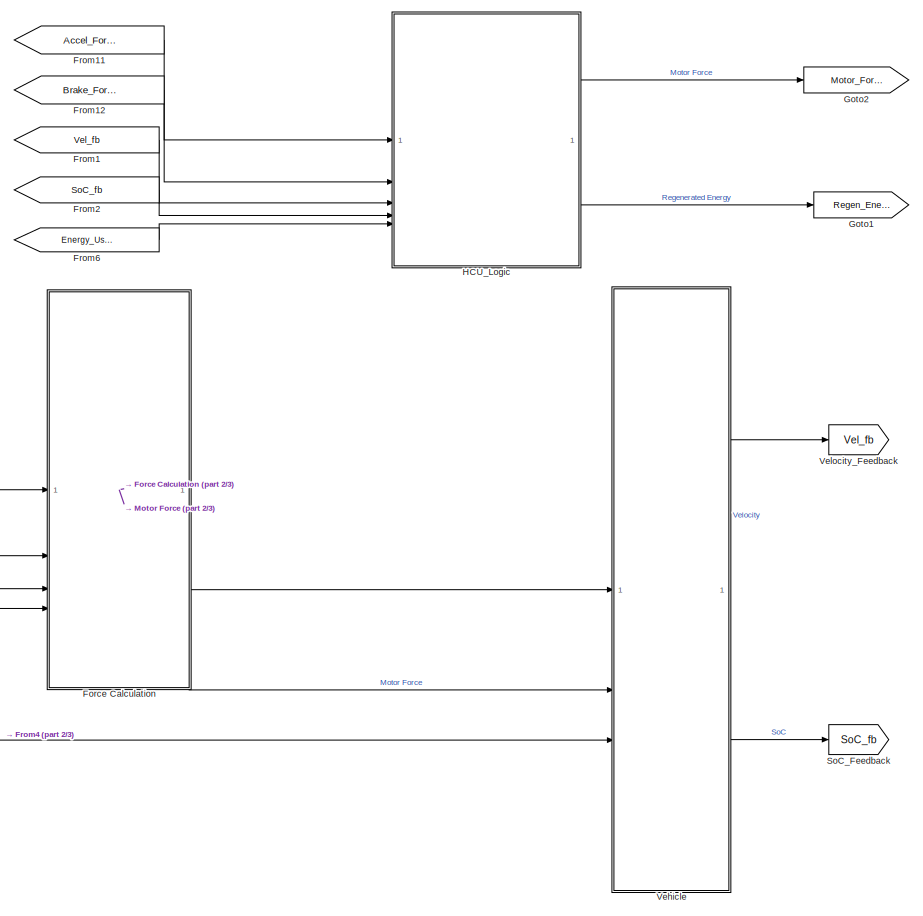
[diagram: root canvas - part 1/3, center side, full height]
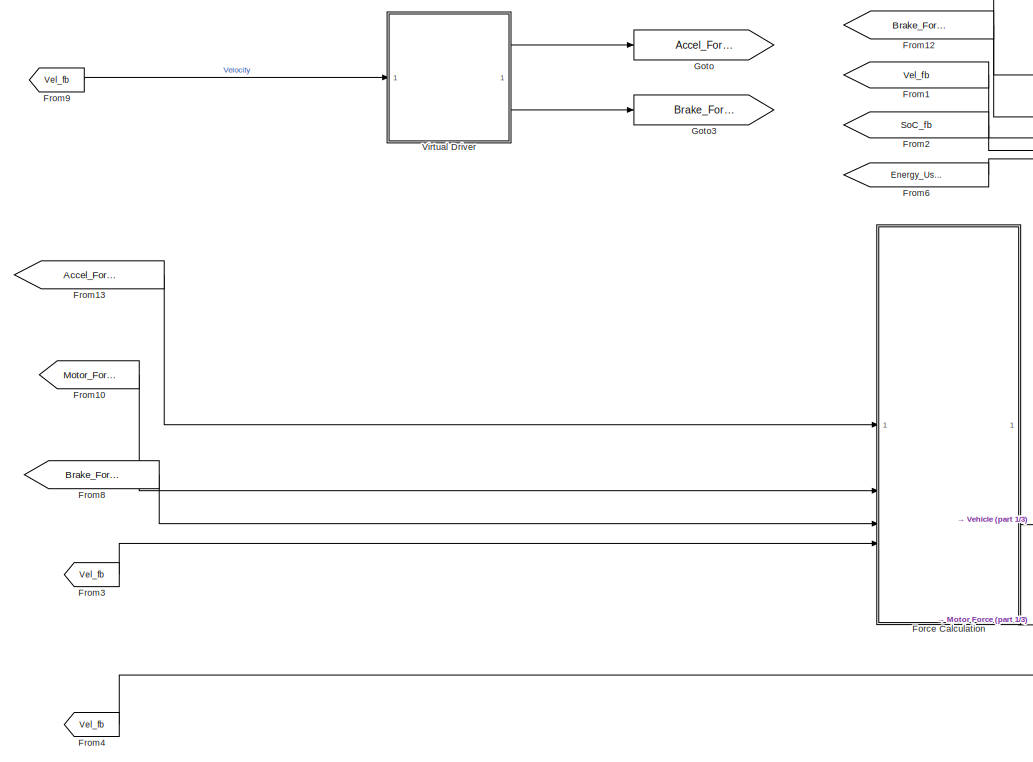
[diagram: root canvas - part 2/3, left side, full height]
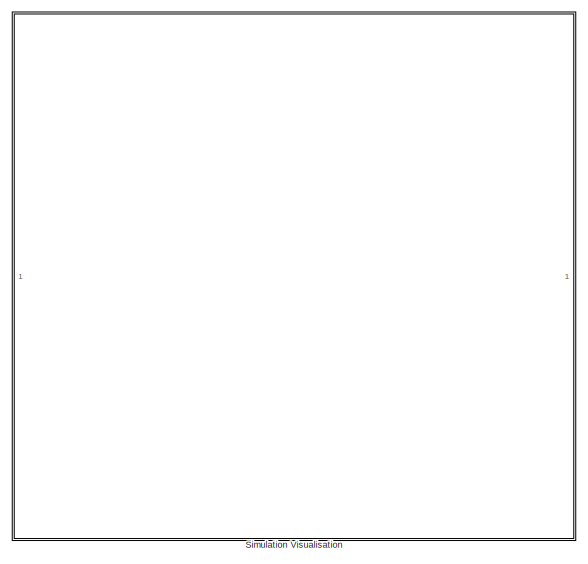
[diagram: root canvas - part 3/3, middle right region]
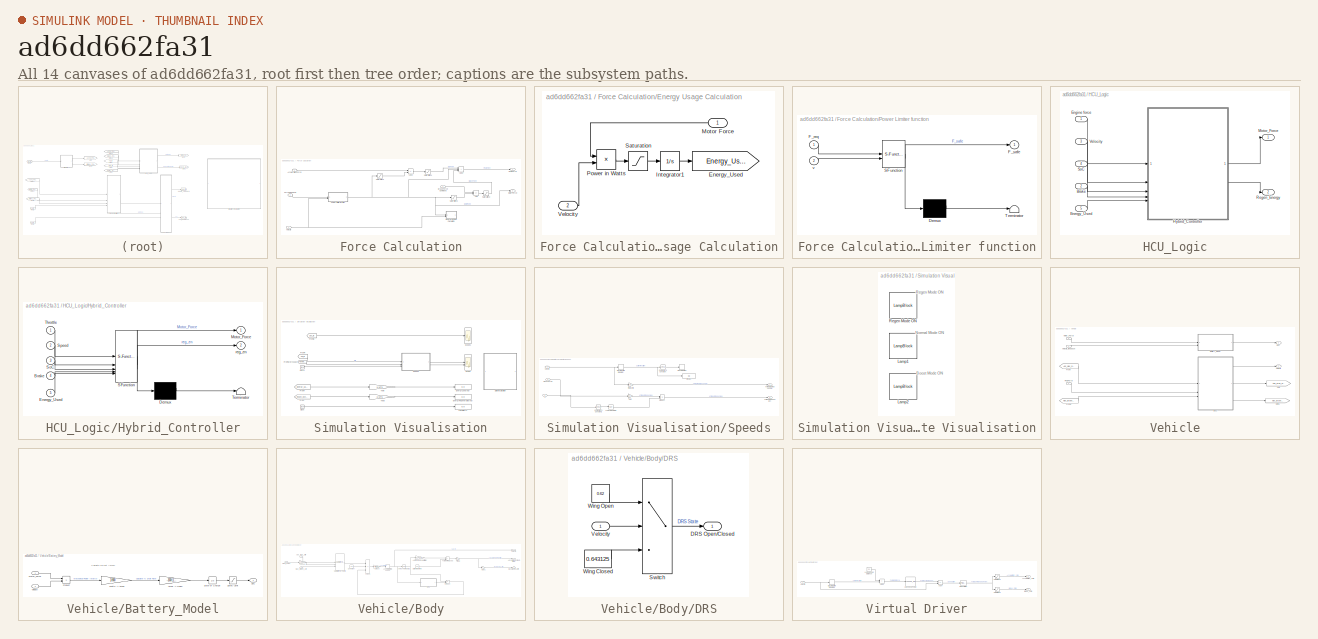
[diagram: thumbnail index - all 14 canvases of the model, root first then tree order]
MODEL slx_ad6dd662fa31
KIND model
CONFIG AbsTol = auto
CONFIG EnableMultiTasking = off
CONFIG FixedStep = 0.001
CONFIG MaxStep = auto
CONFIG MinStep = auto
CONFIG RelTol = 1e-3
CONFIG SampleTimeConstraint = Unconstrained
CONFIG SolverName = FixedStepAuto
CONFIG StartTime = 0
CONFIG StopTime = 90
BLOCK [SubSystem] Force Calculation
BLOCK [Inport] Force Calculation/Acceleration Force
BLOCK [Sum] Force Calculation/Add
  IconShape = rectangular
  Inputs = +-
BLOCK [Sum] Force Calculation/Add1
  IconShape = rectangular
  Inputs = +-
BLOCK [Sum] Force Calculation/Add2
  IconShape = rectangular
  Inputs = +++
BLOCK [Inport] Force Calculation/Brake Force Command
  Port = 3
BLOCK [SubSystem] Force Calculation/Energy Usage Calculation
BLOCK [Goto] Force Calculation/Energy Usage Calculation/Energy_Used
  GotoTag = Energy_Used
  TagVisibility = global
BLOCK [Integrator] Force Calculation/Energy Usage Calculation/Integrator1
BLOCK [Inport] Force Calculation/Energy Usage Calculation/Motor Force
BLOCK [Product] Force Calculation/Energy Usage Calculation/Power in Watts
BLOCK [Saturate] Force Calculation/Energy Usage Calculation/Saturation
  LowerLimit = 0
  UpperLimit = inf
BLOCK [Inport] Force Calculation/Energy Usage Calculation/Velocity
  Port = 2
BLOCK [Outport] Force Calculation/Final Force
BLOCK [Inport] Force Calculation/Force Required
  Port = 2
BLOCK [Outport] Force Calculation/Motor Force
  Port = 2
BLOCK [SubSystem] Force Calculation/Power Limiter function
  ErrorFcn = Stateflow.Translate.translate
  PermitHierarchicalResolution = ExplicitOnly
  SFBlockType = MATLAB Function
  TreatAsAtomicUnit = on
BLOCK [Demux] Force Calculation/Power Limiter function/ Demux 
  Outputs = 1
BLOCK [S-Function] Force Calculation/Power Limiter function/ SFunction 
  EnableBusSupport = on
  FunctionName = sf_sfun
  PortCounts = [2 2]
  SFcnIsStateOwnerBlock = off
  SFunctionDeploymentMode = off
  Tag = Stateflow S-Function 2
BLOCK [Terminator] Force Calculation/Power Limiter function/ Terminator 
BLOCK [Inport] Force Calculation/Power Limiter function/F_req
BLOCK [Outport] Force Calculation/Power Limiter function/F_safe
BLOCK [Inport] Force Calculation/Power Limiter function/v
  Port = 2
BLOCK [Saturate] Force Calculation/Saturation1
  LowerLimit = 0
  UpperLimit = inf
BLOCK [Saturate] Force Calculation/Saturation2
  LowerLimit = -inf
  UpperLimit = 0
BLOCK [Saturate] Force Calculation/Saturation3
  LowerLimit = -inf
  UpperLimit = 0
BLOCK [Saturate] Force Calculation/Saturation4
  LowerLimit = 0
  UpperLimit = inf
BLOCK [Inport] Force Calculation/Velocity
  Port = 4
BLOCK [From] From1
  GotoTag = Vel_fb
  TagVisibility = global
BLOCK [From] From10
  GotoTag = Motor_Force
  TagVisibility = global
BLOCK [From] From11
  GotoTag = Accel_Force_Cmd
  TagVisibility = global
BLOCK [From] From12
  GotoTag = Brake_Force_Cmd
  TagVisibility = global
BLOCK [From] From13
  GotoTag = Accel_Force_Cmd
  TagVisibility = global
BLOCK [From] From2
  GotoTag = SoC_fb
  TagVisibility = global
BLOCK [From] From3
  GotoTag = Vel_fb
  TagVisibility = global
BLOCK [From] From4
  GotoTag = Vel_fb
  TagVisibility = global
BLOCK [From] From6
  GotoTag = Energy_Used
  TagVisibility = global
BLOCK [From] From8
  GotoTag = Brake_Force_Cmd
  TagVisibility = global
BLOCK [From] From9
  GotoTag = Vel_fb
  TagVisibility = global
BLOCK [Goto] Goto
  GotoTag = Accel_Force_Cmd
  TagVisibility = global
BLOCK [Goto] Goto1
  GotoTag = Regen_Energy
  TagVisibility = global
BLOCK [Goto] Goto2
  GotoTag = Motor_Force
  TagVisibility = global
BLOCK [Goto] Goto3
  GotoTag = Brake_Force_Cmd
  TagVisibility = global
BLOCK [SubSystem] HCU_Logic
  RTWSystemCode = Reusable function
  TreatAsAtomicUnit = on
BLOCK [Inport] HCU_Logic/Brake
  Port = 2
BLOCK [Inport] HCU_Logic/Energy_Used
  Port = 5
BLOCK [Inport] HCU_Logic/Engine force
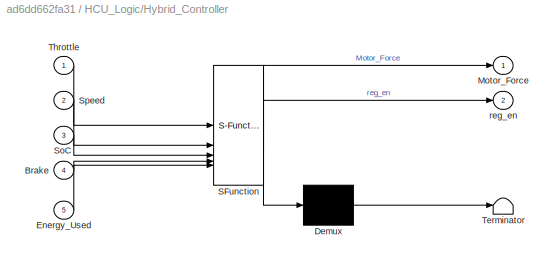
BLOCK [SubSystem] HCU_Logic/Hybrid_Controller
  ErrorFcn = Stateflow.Translate.translate
  PermitHierarchicalResolution = ExplicitOnly
  SFBlockType = Chart
  TreatAsAtomicUnit = on
BLOCK [Demux] HCU_Logic/Hybrid_Controller/ Demux 
  Outputs = 1
BLOCK [S-Function] HCU_Logic/Hybrid_Controller/ SFunction 
  EnableBusSupport = on
  FunctionName = sf_sfun
  PortCounts = [5 3]
  SFcnIsStateOwnerBlock = off
  SFunctionDeploymentMode = off
  Tag = Stateflow S-Function 3
BLOCK [Terminator] HCU_Logic/Hybrid_Controller/ Terminator 
BLOCK [Inport] HCU_Logic/Hybrid_Controller/Brake
  Port = 4
BLOCK [Inport] HCU_Logic/Hybrid_Controller/Energy_Used
  Port = 5
BLOCK [Outport] HCU_Logic/Hybrid_Controller/Motor_Force
BLOCK [Inport] HCU_Logic/Hybrid_Controller/SoC
  Port = 3
BLOCK [Inport] HCU_Logic/Hybrid_Controller/Speed
  Port = 2
BLOCK [Inport] HCU_Logic/Hybrid_Controller/Throttle
BLOCK [Outport] HCU_Logic/Hybrid_Controller/reg_en
  Port = 2
BLOCK [Outport] HCU_Logic/Motor_Force
BLOCK [Outport] HCU_Logic/Regen_Energy
  Port = 2
BLOCK [Inport] HCU_Logic/SoC
  Port = 4
BLOCK [Inport] HCU_Logic/Velocity
  Port = 3
BLOCK [SubSystem] Simulation Visualisation
BLOCK [Clock] Simulation Visualisation/Clock
BLOCK [Clock] Simulation Visualisation/Clock1
BLOCK [Display] Simulation Visualisation/Energy Regenerated (MJ)
  Decimation = 1
  Format = bank
BLOCK [Display] Simulation Visualisation/Energy Used (MJ)
  Decimation = 1
  Format = bank
BLOCK [From] Simulation Visualisation/From
  GotoTag = Regen_Energy
  TagVisibility = global
BLOCK [FromWorkspace] Simulation Visualisation/From Workspace
  VariableName = Monza_Cycle
BLOCK [From] Simulation Visualisation/From4
  GotoTag = Vel_fb
  TagVisibility = global
BLOCK [From] Simulation Visualisation/From5
  GotoTag = SoC_fb
  TagVisibility = global
BLOCK [From] Simulation Visualisation/From7
  GotoTag = Energy_Used
  TagVisibility = global
BLOCK [Display] Simulation Visualisation/Lap Time (s)
  Decimation = 1
  Format = decimal (Stored Integer)
BLOCK [Scope] Simulation Visualisation/Scope
  Floating = off
  NumInputPorts = 2
  ScopeSpecificationString = Simulink.scopes.TimeScopeBlockCfg('CurrentConfiguration', extmgr.ConfigurationSet(extmgr.Configuration('Core','General UI',true),extmgr.Configuration('Core','Source UI',true),extmgr.Configuration('Sources','WiredSimulink',true),extmgr.Configuration('Visuals','Time Domain',true,'SerializedDisplays',{struct('MinYLimReal','-43.5','MaxYLimReal','391.5','YLabelReal','','MinYLimMag','0.00000','MaxYLimMa...<+1511ch>
BLOCK [Scope] Simulation Visualisation/Scope1
  Floating = off
  NumInputPorts = 1
  ScopeSpecificationString = Simulink.scopes.TimeScopeBlockCfg('CurrentConfiguration', extmgr.ConfigurationSet(extmgr.Configuration('Core','General UI',true),extmgr.Configuration('Core','Source UI',true),extmgr.Configuration('Sources','WiredSimulink',true,'DataLoggingVariableName','ScopeData1'),extmgr.Configuration('Visuals','Time Domain',true,'SerializedDisplays',{struct('MinYLimReal','50.97392','MaxYLimReal','101.91828','YL...<+1565ch>
BLOCK [SubSystem] Simulation Visualisation/Speeds
BLOCK [Reference] Simulation Visualisation/Speeds/Compare To Constant  REF=simulink/Logic and Bit
Operations/Compare
To Constant
  SourceBlock = simulink/Logic and Bit\nOperations/Compare\nTo Constant
  SourceType = Compare To Constant
BLOCK [Reference] Simulation Visualisation/Speeds/Compare To Constant1  REF=simulink/Logic and Bit
Operations/Compare
To Constant
  SourceBlock = simulink/Logic and Bit\nOperations/Compare\nTo Constant
  SourceType = Compare To Constant
BLOCK [DiscreteIntegrator] Simulation Visualisation/Speeds/Discrete-Time Integrator
  ICPrevOutput = DiscIntNeverNeededParam
  ICPrevScaledInput = DiscIntNeverNeededParam
  InitialConditionSetting = Auto
  SampleTime = -1
BLOCK [Display] Simulation Visualisation/Speeds/Display
  Decimation = 1
BLOCK [Gain] Simulation Visualisation/Speeds/Gain
  Gain = 3.6
BLOCK [Logic] Simulation Visualisation/Speeds/Logical Operator1
  AllPortsSameDT = off
  Operator = NOT
  OutDataTypeStr = boolean
BLOCK [Inport] Simulation Visualisation/Speeds/Monza Cycle
  Port = 2
BLOCK [Product] Simulation Visualisation/Speeds/Product
BLOCK [Stop] Simulation Visualisation/Speeds/Stop Simulation
BLOCK [Inport] Simulation Visualisation/Speeds/Velocity
BLOCK [Outport] Simulation Visualisation/Speeds/km//h (Verstappen lap)
  Port = 2
BLOCK [Outport] Simulation Visualisation/Speeds/km//h (simulated vehicle)
BLOCK [Gain] Simulation Visualisation/Speeds/m//s to km//h
  Gain = 3.6
BLOCK [Inport] Simulation Visualisation/Speeds/u
  Port = 3
BLOCK [SubSystem] Simulation Visualisation/State Visualisation
BLOCK [LampBlock] Simulation Visualisation/State Visualisation/Lamp1
  LabelPosition = Hide
BLOCK [LampBlock] Simulation Visualisation/State Visualisation/Lamp2
  LabelPosition = Hide
BLOCK [LampBlock] Simulation Visualisation/State Visualisation/Regen Mode ON
  LabelPosition = Hide
BLOCK [Gain] Simulation Visualisation/To MJ
  Gain = 1/10^6
BLOCK [Gain] Simulation Visualisation/To Mj
  Gain = 1/10^6
BLOCK [Goto] SoC_Feedback
  GotoTag = SoC_fb
  TagVisibility = global
BLOCK [SubSystem] Vehicle
BLOCK [SubSystem] Vehicle/Battery_Model
BLOCK [Gain] Vehicle/Battery_Model/Amps -> %SoC
  Gain = -100/(1.75*3600)
BLOCK [Inport] Vehicle/Battery_Model/Motor_Force
BLOCK [Product] Vehicle/Battery_Model/Product
BLOCK [Saturate] Vehicle/Battery_Model/Safety Limit
  LowerLimit = 20
  UpperLimit = 100
BLOCK [Outport] Vehicle/Battery_Model/SoC
BLOCK [Integrator] Vehicle/Battery_Model/State of Charge
  InitialCondition = 90
  LimitOutput = on
  LowerSaturationLimit = 0
  UpperSaturationLimit = 100
BLOCK [Inport] Vehicle/Battery_Model/Velocity
  Port = 2
BLOCK [Gain] Vehicle/Battery_Model/Watts -> Amps
  Gain = 1/800
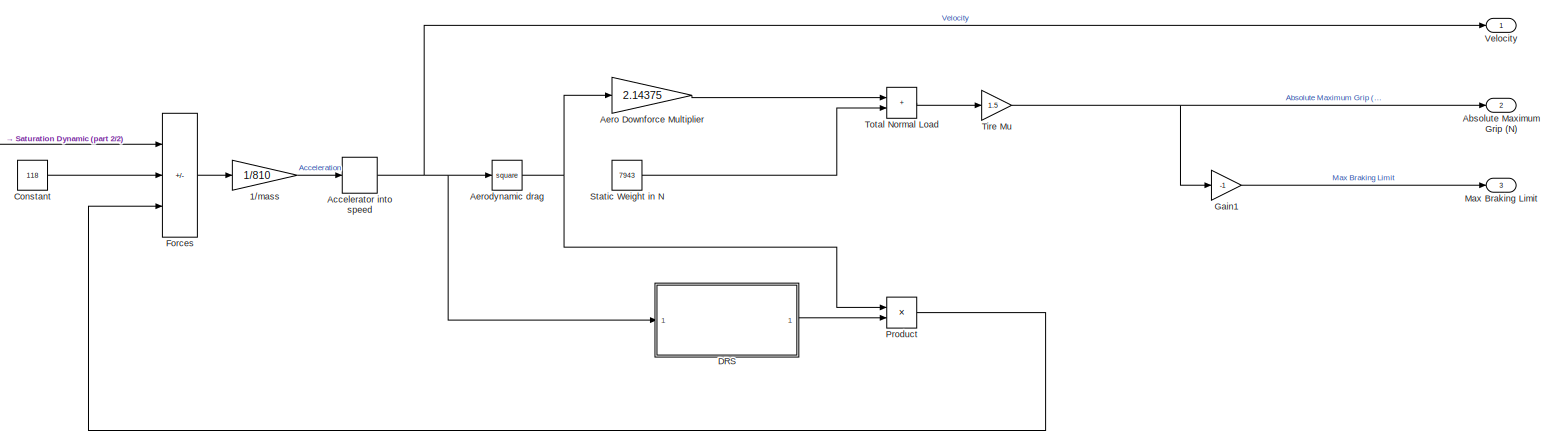
[diagram: Vehicle/Body - part 1/2, center side, full height]
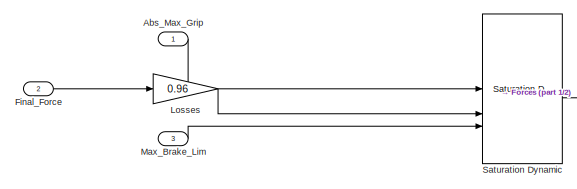
[diagram: Vehicle/Body - part 2/2, middle left region]
BLOCK [SubSystem] Vehicle/Body
BLOCK [Gain] Vehicle/Body/1//mass
  Gain = 1/810
BLOCK [Inport] Vehicle/Body/Abs_Max_Grip
BLOCK [Outport] Vehicle/Body/Absolute Maximum Grip (N)
  Port = 2
BLOCK [DiscreteIntegrator] Vehicle/Body/Accelerator into speed
  ICPrevOutput = DiscIntNeverNeededParam
  ICPrevScaledInput = DiscIntNeverNeededParam
  InitialCondition = 89
  InitialConditionSetting = Auto
  SampleTime = -1
BLOCK [Gain] Vehicle/Body/Aero Downforce Multiplier
  Gain = 2.14375
BLOCK [Math] Vehicle/Body/Aerodynamic drag
  Operator = square
BLOCK [Constant] Vehicle/Body/Constant
  Value = 118
BLOCK [SubSystem] Vehicle/Body/DRS
BLOCK [Outport] Vehicle/Body/DRS/DRS Open//Closed
BLOCK [Switch] Vehicle/Body/DRS/Switch
  Criteria = u2 > Threshold
  InputSameDT = off
  SaturateOnIntegerOverflow = off
  Threshold = 69.4
BLOCK [Inport] Vehicle/Body/DRS/Velocity
BLOCK [Constant] Vehicle/Body/DRS/Wing Closed
  Value = 0.643125
BLOCK [Constant] Vehicle/Body/DRS/Wing Open
  Value = 0.62
BLOCK [Inport] Vehicle/Body/Final_Force
  Port = 2
BLOCK [Sum] Vehicle/Body/Forces
  IconShape = rectangular
  Inputs = +--
BLOCK [Gain] Vehicle/Body/Gain1
  Gain = -1
BLOCK [Gain] Vehicle/Body/Losses
  Gain = 0.96
BLOCK [Outport] Vehicle/Body/Max Braking Limit
  Port = 3
BLOCK [Inport] Vehicle/Body/Max_Brake_Lim
  Port = 3
BLOCK [Product] Vehicle/Body/Product
BLOCK [Reference] Vehicle/Body/Saturation Dynamic  REF=simulink/Discontinuities/Saturation
Dynamic
  SourceBlock = simulink/Discontinuities/Saturation\nDynamic
  SourceType = Saturation Dynamic
BLOCK [Constant] Vehicle/Body/Static Weight in N
  Value = 7943
BLOCK [Gain] Vehicle/Body/Tire Mu
  Gain = 1.5
BLOCK [Sum] Vehicle/Body/Total Normal Load
  IconShape = rectangular
BLOCK [Outport] Vehicle/Body/Velocity
BLOCK [Inport] Vehicle/Final Force
BLOCK [From] Vehicle/From
  GotoTag = Abs_Max_Grip
  TagVisibility = global
BLOCK [From] Vehicle/From1
  GotoTag = Max_Brake_Lim
  TagVisibility = global
BLOCK [Goto] Vehicle/Goto
  GotoTag = Abs_Max_Grip
  TagVisibility = global
BLOCK [Goto] Vehicle/Goto1
  GotoTag = Max_Brake_Lim
  TagVisibility = global
BLOCK [Inport] Vehicle/Motor_Force
  Port = 2
BLOCK [Outport] Vehicle/SoC
  Port = 2
BLOCK [Outport] Vehicle/Velocity
BLOCK [Inport] Vehicle/Velocity_feedback
  Port = 3
BLOCK [Goto] Velocity_Feedback
  GotoTag = Vel_fb
  TagVisibility = global
BLOCK [SubSystem] Virtual Driver
BLOCK [Lookup_n-D] Virtual Driver/1-D Lookup Table
  BreakpointsForDimension1 = monza_dist_axis
  ExtrapMethod = Clip
  InputPortMap = u0
  InternalRulePriority = Speed
  NumberOfTableDimensions = 1
  RndMeth = Simplest
  Table = monza_speed_target
BLOCK [Outport] Virtual Driver/Acceleration_cmd
BLOCK [Sum] Virtual Driver/Add3
  IconShape = rectangular
BLOCK [Sum] Virtual Driver/Add4
  IconShape = rectangular
  Inputs = +-
BLOCK [Outport] Virtual Driver/Brake_Cmd
  Port = 2
BLOCK [DiscreteIntegrator] Virtual Driver/Discrete-Time Integrator1
  ICPrevOutput = DiscIntNeverNeededParam
  ICPrevScaledInput = DiscIntNeverNeededParam
  InitialConditionSetting = Auto
  SampleTime = -1
BLOCK [Constant] Virtual Driver/Lookahead distance
  Value = 50
BLOCK [Reference] Virtual Driver/PID Controller  REF=slpidlib/PID Controller
  LibrarySourceBlock = simulink/Continuous/PID Controller
  SourceBlock = slpidlib/PID Controller
  SourceType = PID 1dof
BLOCK [Saturate] Virtual Driver/Saturation5
  LowerLimit = 0
  UpperLimit = inf
BLOCK [Saturate] Virtual Driver/Saturation6
  LowerLimit = -inf
  UpperLimit = 0
BLOCK [Inport] Virtual Driver/Velocity
ANNOTATION Simulation Visualisation/State Visualisation: Boost Mode ON
ANNOTATION Simulation Visualisation/State Visualisation: Normal Mode ON
ANNOTATION Simulation Visualisation/State Visualisation: Regen Mode ON
ANNOTATION Vehicle/Battery_Model: Calculate current (Amps)
LINE Force Calculation/Acceleration Force:1 -> Force Calculation/Add1:1
LINE Force Calculation/Add1:1 -> Force Calculation/Saturation1:1
LINE Force Calculation/Add2:1 -> Force Calculation/Final Force:1
LINE Force Calculation/Add:1 -> Force Calculation/Saturation2:1
LINE Force Calculation/Brake Force Command:1 -> Force Calculation/Add:1
LINE Force Calculation/Energy Usage Calculation/Integrator1:1 -> Force Calculation/Energy Usage Calculation/Energy_Used:1
LINE Force Calculation/Energy Usage Calculation/Motor Force:1 -> Force Calculation/Energy Usage Calculation/Power in Watts:1
LINE Force Calculation/Energy Usage Calculation/Power in Watts:1 -> Force Calculation/Energy Usage Calculation/Saturation:1
LINE Force Calculation/Energy Usage Calculation/Saturation:1 -> Force Calculation/Energy Usage Calculation/Integrator1:1
LINE Force Calculation/Energy Usage Calculation/Velocity:1 -> Force Calculation/Energy Usage Calculation/Power in Watts:2
LINE Force Calculation/Force Required:1 -> Force Calculation/Power Limiter function:1
NET Force Calculation/Power Limiter function:1 -> Force Calculation/Add2:2, Force Calculation/Energy Usage Calculation:1, Force Calculation/Motor Force:1, Force Calculation/Saturation3:1, Force Calculation/Saturation4:1
LINE Force Calculation/Saturation1:1 -> Force Calculation/Add2:1
LINE Force Calculation/Saturation2:1 -> Force Calculation/Add2:3
LINE Force Calculation/Saturation3:1 -> Force Calculation/Add:2
LINE Force Calculation/Saturation4:1 -> Force Calculation/Add1:2
NET Force Calculation/Velocity:1 -> Force Calculation/Energy Usage Calculation:2, Force Calculation/Power Limiter function:2
LINE Force Calculation:1 -> Vehicle:1
LINE Force Calculation:2 -> Vehicle:2
LINE From10:1 -> Force Calculation:2
LINE From11:1 -> HCU_Logic:1
LINE From12:1 -> HCU_Logic:2
LINE From13:1 -> Force Calculation:1
LINE From1:1 -> HCU_Logic:3
LINE From2:1 -> HCU_Logic:4
LINE From3:1 -> Force Calculation:4
LINE From4:1 -> Vehicle:3
LINE From6:1 -> HCU_Logic:5
LINE From8:1 -> Force Calculation:3
LINE From9:1 -> Virtual Driver:1
LINE HCU_Logic/Brake:1 -> HCU_Logic/Hybrid_Controller:4
LINE HCU_Logic/Energy_Used:1 -> HCU_Logic/Hybrid_Controller:5
LINE HCU_Logic/Engine force:1 -> HCU_Logic/Hybrid_Controller:1
LINE HCU_Logic/Hybrid_Controller:1 -> HCU_Logic/Motor_Force:1
LINE HCU_Logic/Hybrid_Controller:2 -> HCU_Logic/Regen_Energy:1
LINE HCU_Logic/SoC:1 -> HCU_Logic/Hybrid_Controller:3
LINE HCU_Logic/Velocity:1 -> HCU_Logic/Hybrid_Controller:2
LINE HCU_Logic:1 -> Goto2:1
LINE HCU_Logic:2 -> Goto1:1
LINE Simulation Visualisation/Clock1:1 -> Simulation Visualisation/Speeds:3
LINE Simulation Visualisation/Clock:1 -> Simulation Visualisation/Lap Time (s):1
LINE Simulation Visualisation/From Workspace:1 -> Simulation Visualisation/Speeds:2
LINE Simulation Visualisation/From4:1 -> Simulation Visualisation/Speeds:1
LINE Simulation Visualisation/From5:1 -> Simulation Visualisation/Scope1:1
LINE Simulation Visualisation/From7:1 -> Simulation Visualisation/To Mj:1
LINE Simulation Visualisation/From:1 -> Simulation Visualisation/To MJ:1
LINE Simulation Visualisation/Speeds/Compare To Constant1:1 -> Simulation Visualisation/Speeds/Logical Operator1:1
LINE Simulation Visualisation/Speeds/Compare To Constant:1 -> Simulation Visualisation/Speeds/Stop Simulation:1
NET Simulation Visualisation/Speeds/Discrete-Time Integrator:1 -> Simulation Visualisation/Speeds/Compare To Constant:1, Simulation Visualisation/Speeds/Display:1
LINE Simulation Visualisation/Speeds/Gain:1 -> Simulation Visualisation/Speeds/Product:1
LINE Simulation Visualisation/Speeds/Logical Operator1:1 -> Simulation Visualisation/Speeds/Product:2
LINE Simulation Visualisation/Speeds/Monza Cycle:1 -> Simulation Visualisation/Speeds/Gain:1
LINE Simulation Visualisation/Speeds/Product:1 -> Simulation Visualisation/Speeds/km//h (Verstappen lap):1
NET Simulation Visualisation/Speeds/Velocity:1 -> Simulation Visualisation/Speeds/Discrete-Time Integrator:1, Simulation Visualisation/Speeds/m//s to km//h:1
LINE Simulation Visualisation/Speeds/m//s to km//h:1 -> Simulation Visualisation/Speeds/km//h (simulated vehicle):1
LINE Simulation Visualisation/Speeds/u:1 -> Simulation Visualisation/Speeds/Compare To Constant1:1
LINE Simulation Visualisation/Speeds:1 -> Simulation Visualisation/Scope:1
LINE Simulation Visualisation/Speeds:2 -> Simulation Visualisation/Scope:2
LINE Simulation Visualisation/To MJ:1 -> Simulation Visualisation/Energy Regenerated (MJ):1
LINE Simulation Visualisation/To Mj:1 -> Simulation Visualisation/Energy Used (MJ):1
LINE Vehicle/Battery_Model/Amps -> %SoC:1 -> Vehicle/Battery_Model/State of Charge:1
LINE Vehicle/Battery_Model/Motor_Force:1 -> Vehicle/Battery_Model/Product:1
LINE Vehicle/Battery_Model/Product:1 -> Vehicle/Battery_Model/Watts -> Amps:1
LINE Vehicle/Battery_Model/Safety Limit:1 -> Vehicle/Battery_Model/SoC:1
LINE Vehicle/Battery_Model/State of Charge:1 -> Vehicle/Battery_Model/Safety Limit:1
LINE Vehicle/Battery_Model/Velocity:1 -> Vehicle/Battery_Model/Product:2
LINE Vehicle/Battery_Model/Watts -> Amps:1 -> Vehicle/Battery_Model/Amps -> %SoC:1
LINE Vehicle/Battery_Model:1 -> Vehicle/SoC:1
LINE Vehicle/Body/1//mass:1 -> Vehicle/Body/Accelerator into speed:1
LINE Vehicle/Body/Abs_Max_Grip:1 -> Vehicle/Body/Saturation Dynamic:1
NET Vehicle/Body/Accelerator into speed:1 -> Vehicle/Body/Aerodynamic drag:1, Vehicle/Body/DRS:1, Vehicle/Body/Velocity:1
LINE Vehicle/Body/Aero Downforce Multiplier:1 -> Vehicle/Body/Total Normal Load:1
NET Vehicle/Body/Aerodynamic drag:1 -> Vehicle/Body/Aero Downforce Multiplier:1, Vehicle/Body/Product:1
LINE Vehicle/Body/Constant:1 -> Vehicle/Body/Forces:2
LINE Vehicle/Body/DRS/Switch:1 -> Vehicle/Body/DRS/DRS Open//Closed:1
LINE Vehicle/Body/DRS/Velocity:1 -> Vehicle/Body/DRS/Switch:2
LINE Vehicle/Body/DRS/Wing Closed:1 -> Vehicle/Body/DRS/Switch:3
LINE Vehicle/Body/DRS/Wing Open:1 -> Vehicle/Body/DRS/Switch:1
LINE Vehicle/Body/DRS:1 -> Vehicle/Body/Product:2
LINE Vehicle/Body/Final_Force:1 -> Vehicle/Body/Losses:1
LINE Vehicle/Body/Forces:1 -> Vehicle/Body/1//mass:1
LINE Vehicle/Body/Gain1:1 -> Vehicle/Body/Max Braking Limit:1
LINE Vehicle/Body/Losses:1 -> Vehicle/Body/Saturation Dynamic:2
LINE Vehicle/Body/Max_Brake_Lim:1 -> Vehicle/Body/Saturation Dynamic:3
LINE Vehicle/Body/Product:1 -> Vehicle/Body/Forces:3
LINE Vehicle/Body/Saturation Dynamic:1 -> Vehicle/Body/Forces:1
LINE Vehicle/Body/Static Weight in N:1 -> Vehicle/Body/Total Normal Load:2
NET Vehicle/Body/Tire Mu:1 -> Vehicle/Body/Absolute Maximum Grip (N):1, Vehicle/Body/Gain1:1
LINE Vehicle/Body/Total Normal Load:1 -> Vehicle/Body/Tire Mu:1
LINE Vehicle/Body:1 -> Vehicle/Velocity:1
LINE Vehicle/Body:2 -> Vehicle/Goto:1
LINE Vehicle/Body:3 -> Vehicle/Goto1:1
LINE Vehicle/Final Force:1 -> Vehicle/Body:2
LINE Vehicle/From1:1 -> Vehicle/Body:3
LINE Vehicle/From:1 -> Vehicle/Body:1
LINE Vehicle/Motor_Force:1 -> Vehicle/Battery_Model:1
LINE Vehicle/Velocity_feedback:1 -> Vehicle/Battery_Model:2
LINE Vehicle:1 -> Velocity_Feedback:1
LINE Vehicle:2 -> SoC_Feedback:1
LINE Virtual Driver/1-D Lookup Table:1 -> Virtual Driver/Add4:1
LINE Virtual Driver/Add3:1 -> Virtual Driver/1-D Lookup Table:1
LINE Virtual Driver/Add4:1 -> Virtual Driver/PID Controller:1
LINE Virtual Driver/Discrete-Time Integrator1:1 -> Virtual Driver/Add3:2
LINE Virtual Driver/Lookahead distance:1 -> Virtual Driver/Add3:1
NET Virtual Driver/PID Controller:1 -> Virtual Driver/Saturation5:1, Virtual Driver/Saturation6:1
LINE Virtual Driver/Saturation5:1 -> Virtual Driver/Acceleration_cmd:1
LINE Virtual Driver/Saturation6:1 -> Virtual Driver/Brake_Cmd:1
NET Virtual Driver/Velocity:1 -> Virtual Driver/Add4:2, Virtual Driver/Discrete-Time Integrator1:1
LINE Virtual Driver:1 -> Goto:1
LINE Virtual Driver:2 -> Goto3:1
note: NET lines group one-source signal fan-out (src -> all destinations, sorted); 1:1 wires keep LINE
CHART Force Calculation/Power Limiter function states=1 transitions=1
  STATE_LABEL 'eML_blk_kernel()'
  STATE_LABEL 'SCRIPT:\nfunction F_safe = PowerLimiter(F_req, v)\n    % regulations: 120 kw limit (120,000 wats)\n    P_max = 120000;\n    % prevent divide by zero\n    % if speed is less than 1 m/s we pretend its 1 m/s to avoid infinity\n    % at low speeds we are limited by torque, not power\n    v_safe = max(abs(v), 1.0);\n\n    % calculate the force limit at this speed\n    % power = force * velocity -> force = power ...<+379ch>'
CHART HCU_Logic/Hybrid_Controller states=6 transitions=6
  STATE_LABEL 'Motor is pushing backwards/slowing down\n'
  STATE_LABEL 'Battery_Regen_Mode\nentry:\nMotor_Force= -2777;\nduring:\nRegen_Energy = Regen_Energy + (2777 * Speed * 0.001)\nreg_en = Regen_Energy'
  STATE_LABEL 'Eco_mode\nentry:\nMotor_Force=0;'
  STATE_LABEL 'Boost_Mode\nentry:\nMotor_Force = 100000;'
  STATE_LABEL 'The Motor will output only a limited power out of 100000'
  STATE_LABEL 'When in Eco Mode, electric motor is OFF\n'
CHART  states=0 transitions=0
CHART  states=0 transitions=0
